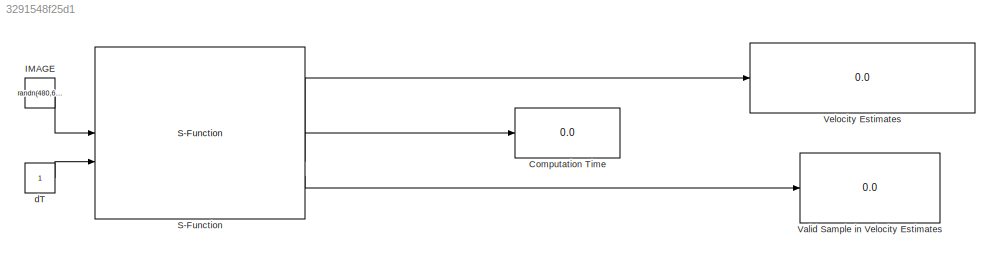
MODEL slx_3291548f25d1
KIND model
CONFIG AbsTol = auto
CONFIG EnableMultiTasking = off
CONFIG FixedStep = 1e-3
CONFIG MaxStep = auto
CONFIG MinStep = auto
CONFIG RelTol = 1e-3
CONFIG SampleTimeConstraint = Unconstrained
CONFIG SolverName = ode4
CONFIG StartTime = 0.0
CONFIG StopTime = Inf
BLOCK [Display] Computation Time
  Decimation = 1
BLOCK [Constant] IMAGE
  Value = randn(480,640, 'double')
BLOCK [S-Function] S-Function
  EnableBusSupport = off
  FunctionName = s_function
  Parameters = 2e-3,1280,1280,1,480,640
  SFcnIsStateOwnerBlock = off
  SFunctionDeploymentMode = off
BLOCK [Display] Valid Sample in Velocity Estimates
  Decimation = 1
BLOCK [Display] Velocity Estimates
  Decimation = 1
BLOCK [Constant] dT
LINE IMAGE:1 -> S-Function:1
LINE S-Function:1 -> Velocity Estimates:1
LINE S-Function:2 -> Computation Time:1
LINE S-Function:3 -> Valid Sample in Velocity Estimates:1
LINE dT:1 -> S-Function:2
